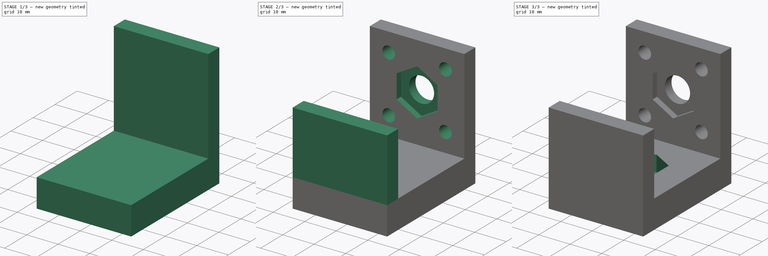
[diagram: build sequence overview — one tinted view per stage of 3, left to right]
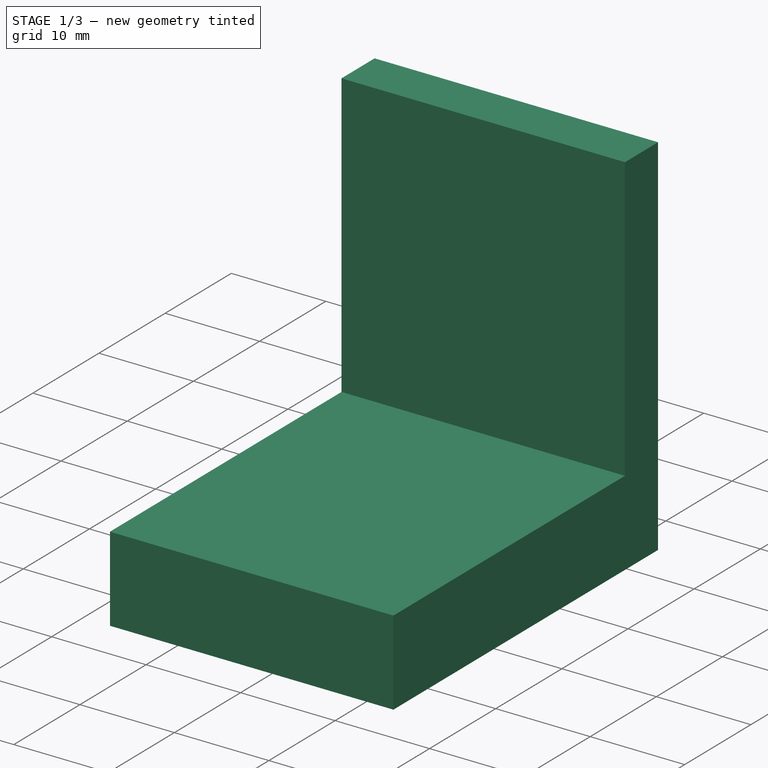
[diagram: stage 1 of 3 — iso view after this stage's code; geometry added in this stage tinted green]
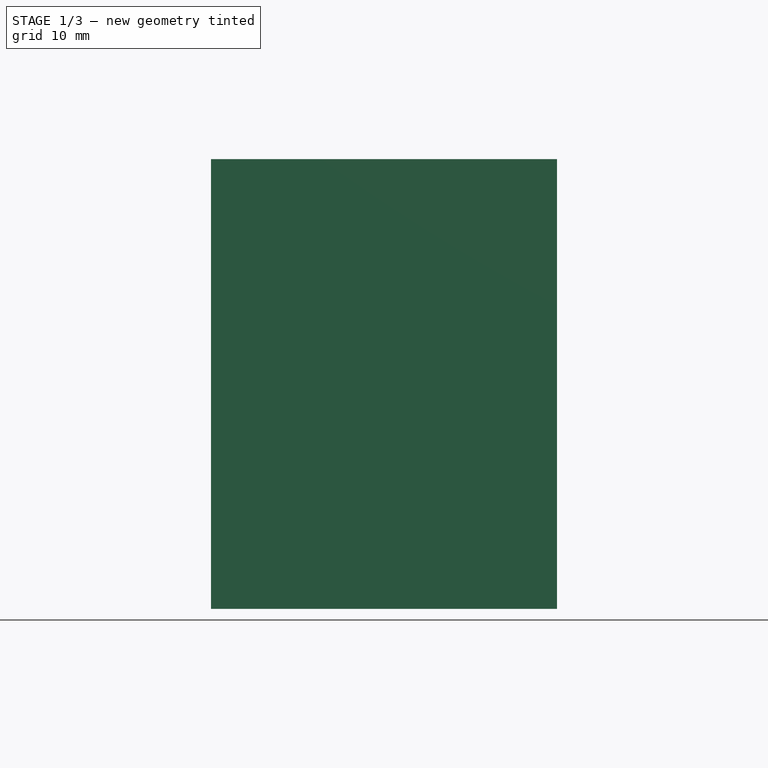
[diagram: stage 1 of 3 — front view after this stage's code; geometry added in this stage tinted green]
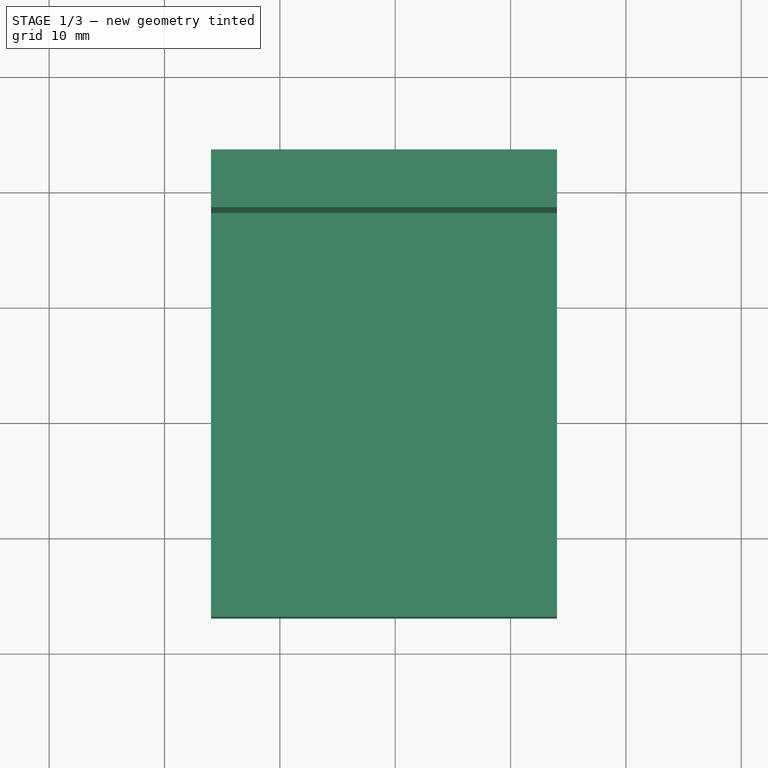
[diagram: stage 1 of 3 — top view after this stage's code; geometry added in this stage tinted green]
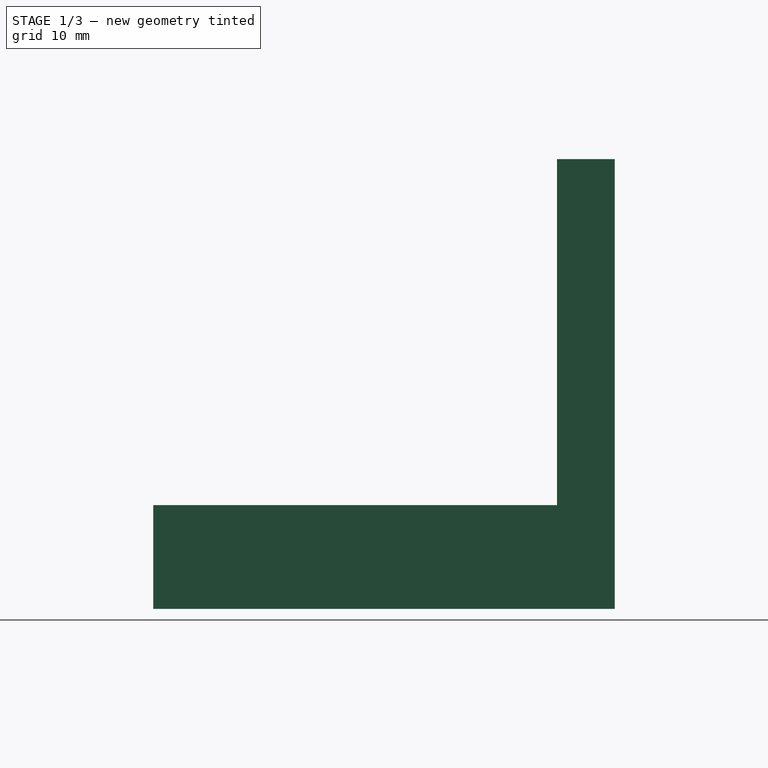
[diagram: stage 1 of 3 — right view after this stage's code; geometry added in this stage tinted green]
FCSTD DOCUMENT  (FreeCAD 0.19R24291 (Git))
Label: Захват крышки
License: All rights reserved
LicenseURL: http://en.wikipedia.org/wiki/All_rights_reserved
objects: Sketcher::SketchObject×9, PartDesign::Pocket×4, PartDesign::Pad×3, PartDesign::Body×1
note: 24 computed .brp shape members not serialized (recipe doc carries the construction recipe); baked Part::Feature solids carry a one-line shape summary decoded from their .brp

FEATURE [Sketcher::SketchObject] Sketch
  FullyConstrained = false
  MapMode = 5
  Support = -> [XY_Plane]
  sketch-geometry (4):
    g0: LineSegment StartX=-25.9712 StartY=33.0692 StartZ=0 EndX=4.02877 EndY=33.0692 EndZ=0
    g1: LineSegment StartX=4.02877 StartY=33.0692 StartZ=0 EndX=4.02877 EndY=-6.93082 EndZ=0
    g2: LineSegment StartX=4.02877 StartY=-6.93082 StartZ=0 EndX=-25.9712 EndY=-6.93082 EndZ=0
    g3: LineSegment StartX=-25.9712 StartY=-6.93082 StartZ=0 EndX=-25.9712 EndY=33.0692 EndZ=0
  constraints (10):
    c: Coincident(g0,g1)
    c: Coincident(g1,g2)
    c: Coincident(g2,g3)
    c: Coincident(g3,g0)
    c: Horizontal(g0)
    c: Horizontal(g2)
    c: Vertical(g1)
    c: Vertical(g3)
    c: Distance(g1) = 40
    c: Distance(g0) = 30
FEATURE [PartDesign::Pad] Pad
  Direction = (1,1,1)
  Length = 9
  Length2 = 100
  Profile = -> Sketch
  Type = 0
FEATURE [Sketcher::SketchObject] Sketch001
  FullyConstrained = true
  MapMode = 5
  Placement = pos=(0,0,9) rot=(0,0,1;0rad)
  Support = -> [Pad]
FEATURE [Sketcher::SketchObject] Sketch002
  ExternalGeometry = -> [Pad]
  FullyConstrained = true
  MapMode = 5
  Placement = pos=(0,0,9) rot=(0,0,1;0rad)
  Support = -> [Pad]
  sketch-geometry (4):
    g0: LineSegment StartX=4.02877 StartY=33.0692 StartZ=0 EndX=-25.9712 EndY=33.0692 EndZ=0
    g1: LineSegment StartX=-25.9712 StartY=33.0692 StartZ=0 EndX=-25.9712 EndY=28.0692 EndZ=0
    g2: LineSegment StartX=-25.9712 StartY=28.0692 StartZ=0 EndX=4.02877 EndY=28.0692 EndZ=0
    g3: LineSegment StartX=4.02877 StartY=28.0692 StartZ=0 EndX=4.02877 EndY=33.0692 EndZ=0
  constraints (10):
    c: Coincident(g0,g1)
    c: Coincident(g1,g2)
    c: Coincident(g2,g3)
    c: Coincident(g3,g0)
    c: Horizontal(g2)
    c: Vertical(g1)
    c: Vertical(g3)
    c: Coincident(g0,g-3)
    c: Coincident(g0,g-3)
    c: Distance(g3) = 5
FEATURE [PartDesign::Pad] Pad001
  BaseFeature = -> Pad
  Direction = (1,1,1)
  Length = 30
  Length2 = 100
  Profile = -> Sketch002
  Type = 0
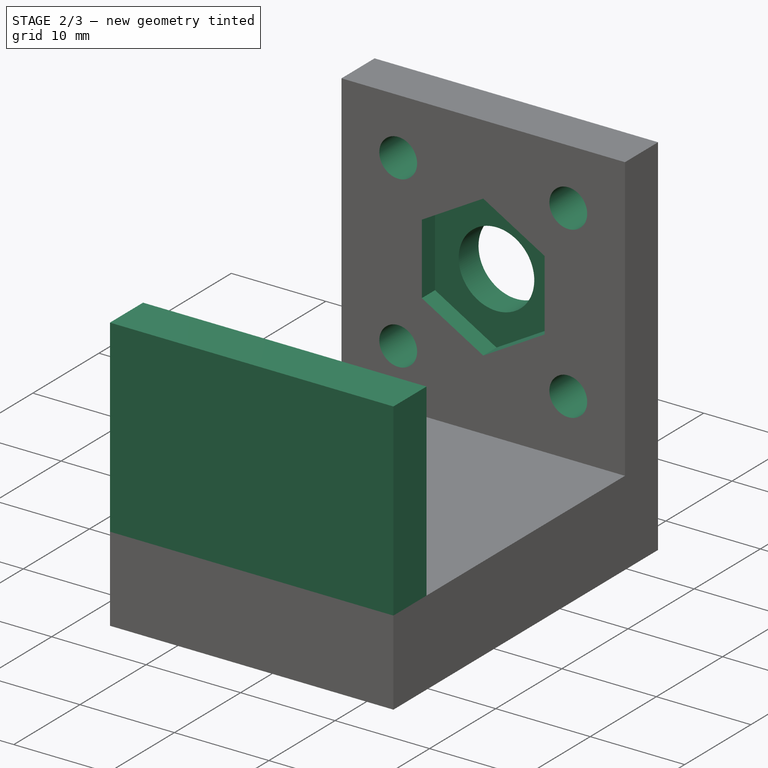
[diagram: stage 2 of 3 — iso view after this stage's code; geometry added in this stage tinted green]
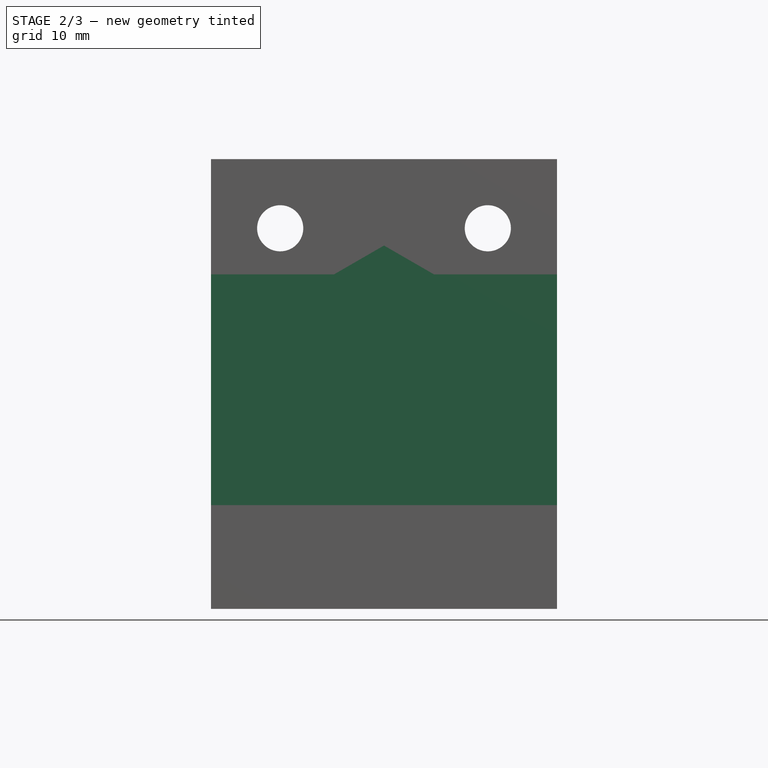
[diagram: stage 2 of 3 — front view after this stage's code; geometry added in this stage tinted green]
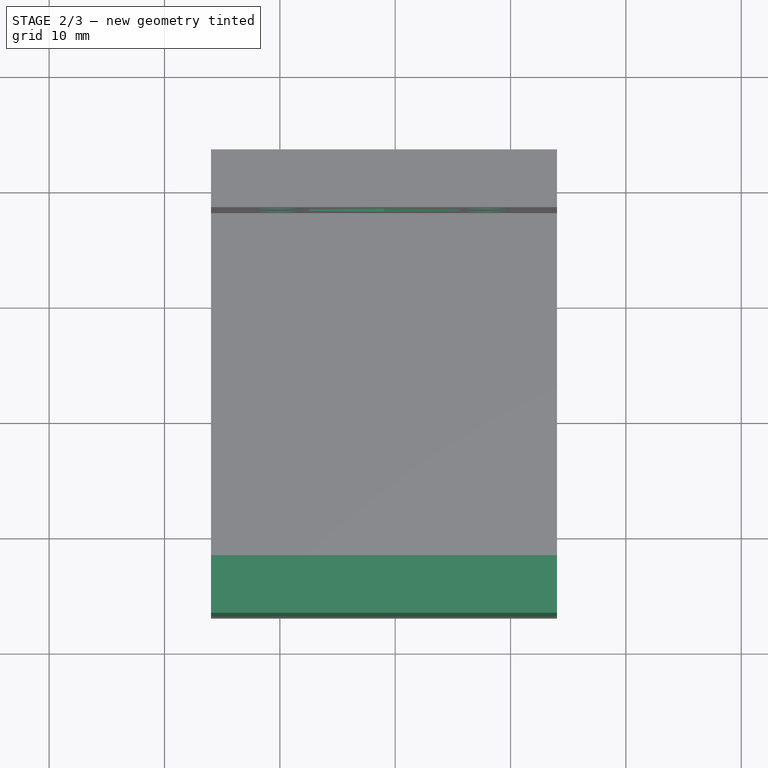
[diagram: stage 2 of 3 — top view after this stage's code; geometry added in this stage tinted green]
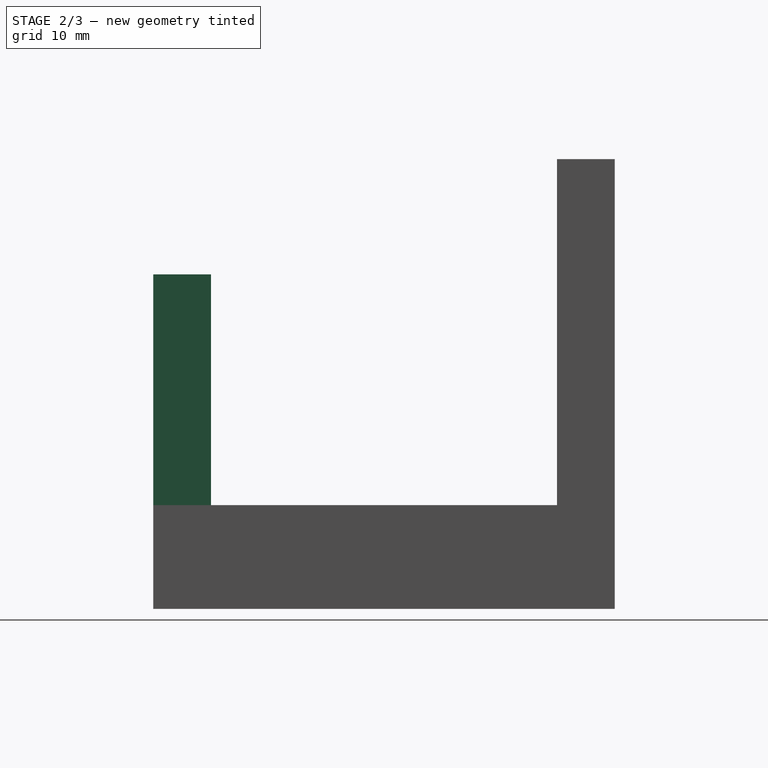
[diagram: stage 2 of 3 — right view after this stage's code; geometry added in this stage tinted green]
FEATURE [Sketcher::SketchObject] Sketch003
  ExternalGeometry = -> [Pad001]
  FullyConstrained = true
  MapMode = 5
  Placement = pos=(0,28.0692,0) rot=(1,0,0;1.5708rad)
  Support = -> [Pad001]
  sketch-geometry (13):
    g0: Circle CenterX=-1.97123 CenterY=33 CenterZ=0 NormalX=0 NormalY=0 NormalZ=1 AngleXU=0 Radius=2
    g1: Circle CenterX=-19.9712 CenterY=33 CenterZ=0 NormalX=0 NormalY=0 NormalZ=1 AngleXU=0 Radius=2
    g2: Circle CenterX=-19.9712 CenterY=15 CenterZ=0 NormalX=0 NormalY=0 NormalZ=1 AngleXU=0 Radius=2
    g3: Circle CenterX=-1.97123 CenterY=15 CenterZ=0 NormalX=0 NormalY=0 NormalZ=1 AngleXU=0 Radius=2
    g4: LineSegment StartX=-1.97123 StartY=15 StartZ=0 EndX=-1.97123 EndY=9 EndZ=0
    g5: LineSegment StartX=-1.97123 StartY=33 StartZ=0 EndX=-1.97123 EndY=39 EndZ=0
    g6: LineSegment StartX=4.02877 StartY=15 StartZ=0 EndX=-1.97123 EndY=15 EndZ=0
    g7: LineSegment StartX=-19.9712 StartY=15 StartZ=0 EndX=-25.9712 EndY=15 EndZ=0
    g8: Circle CenterX=-10.9712 CenterY=24 CenterZ=0 NormalX=0 NormalY=0 NormalZ=1 AngleXU=0 Radius=4
    g9: LineSegment StartX=-10.9712 StartY=24 StartZ=0 EndX=4.02877 EndY=24 EndZ=0
    g10: LineSegment StartX=-10.9712 StartY=24 StartZ=0 EndX=-25.9712 EndY=24 EndZ=0
    g11: LineSegment StartX=-10.9712 StartY=24 StartZ=0 EndX=-10.9712 EndY=39 EndZ=0
    g12: LineSegment StartX=-10.9712 StartY=24 StartZ=0 EndX=-10.9712 EndY=9 EndZ=0
  constraints (39):
    c: Coincident(g4,g3)
    c: PointOnObject(g4,g-6)
    c: Vertical(g4)
    c: Coincident(g5,g0)
    c: PointOnObject(g5,g-3)
    c: Vertical(g5)
    c: PointOnObject(g6,g-4)
    c: Coincident(g6,g3)
    c: Coincident(g7,g2)
    c: PointOnObject(g7,g-5)
    c: Horizontal(g7)
    c: Horizontal(g6)
    c: Horizontal(g1,g0)
    c: Horizontal(g3,g2)
    c: Vertical(g2,g1)
    c: Vertical(g3,g0)
    c: Equal(g3,g0)
    c: Equal(g0,g1)
    c: Equal(g1,g2)
    c: Equal(g4,g5)
    c: Equal(g6,g7)
    c: Distance(g3,g0) = 18
    c: Distance(g2,g3) = 18
    c: Diameter(g0) = 4
    c: Coincident(g9,g8)
    c: PointOnObject(g9,g-4)
    c: Horizontal(g9)
    c: Coincident(g10,g8)
    c: PointOnObject(g10,g-5)
    c: Horizontal(g10)
    c: Coincident(g11,g8)
    c: PointOnObject(g11,g-3)
    c: Vertical(g11)
    c: Coincident(g12,g8)
    c: PointOnObject(g12,g-6)
    c: Vertical(g12)
    c: Equal(g12,g11)
    c: Equal(g9,g10)
    c: Diameter(g8) = 8
FEATURE [PartDesign::Pocket] Pocket
  BaseFeature = -> Pad001
  Length = 5
  Length2 = 100
  Profile = -> Sketch003
  Type = 1
FEATURE [Sketcher::SketchObject] Sketch005
  ExternalGeometry = -> [Pad001]
  FullyConstrained = true
  MapMode = 5
  Placement = pos=(0,28.0692,0) rot=(1,0,0;1.5708rad)
  Support = -> [Pocket]
  expr: Constraints[38] = Sketch003.Constraints[38]
  expr: Constraints[23] = Sketch003.Constraints[23]
  expr: Constraints[22] = Sketch003.Constraints[22]
  sketch-geometry (20):
    g0: Circle CenterX=-1.97123 CenterY=34.5 CenterZ=0 NormalX=0 NormalY=0 NormalZ=1 AngleXU=0 Radius=2
    g1: Circle CenterX=-19.9712 CenterY=34.5 CenterZ=0 NormalX=0 NormalY=0 NormalZ=1 AngleXU=0 Radius=2
    g2: Circle CenterX=-19.9712 CenterY=13.5 CenterZ=0 NormalX=0 NormalY=0 NormalZ=1 AngleXU=0 Radius=2
    g3: Circle CenterX=-1.97123 CenterY=13.5 CenterZ=0 NormalX=0 NormalY=0 NormalZ=1 AngleXU=0 Radius=2
    g4: LineSegment StartX=-1.97123 StartY=13.5 StartZ=0 EndX=-1.97123 EndY=9 EndZ=0
    g5: LineSegment StartX=-1.97123 StartY=34.5 StartZ=0 EndX=-1.97123 EndY=39 EndZ=0
    g6: LineSegment StartX=4.02877 StartY=13.5 StartZ=0 EndX=-1.97123 EndY=13.5 EndZ=0
    g7: LineSegment StartX=-19.9712 StartY=13.5 StartZ=0 EndX=-25.9712 EndY=13.5 EndZ=0
    g8: Circle CenterX=-10.9712 CenterY=24 CenterZ=0 NormalX=0 NormalY=0 NormalZ=1 AngleXU=0 Radius=4
    g9: LineSegment StartX=-10.9712 StartY=24 StartZ=0 EndX=4.02877 EndY=24 EndZ=0
    g10: LineSegment StartX=-10.9712 StartY=24 StartZ=0 EndX=-25.9712 EndY=24 EndZ=0
    g11: LineSegment StartX=-10.9712 StartY=24 StartZ=0 EndX=-10.9712 EndY=39 EndZ=0
    g12: LineSegment StartX=-10.9712 StartY=24 StartZ=0 EndX=-10.9712 EndY=9 EndZ=0
    g13: LineSegment StartX=-4.47123 StartY=27.7528 StartZ=0 EndX=-10.9712 EndY=31.5056 EndZ=0
    g14: LineSegment StartX=-10.9712 StartY=31.5056 StartZ=0 EndX=-17.4712 EndY=27.7528 EndZ=0
    g15: LineSegment StartX=-17.4712 StartY=27.7528 StartZ=0 EndX=-17.4712 EndY=20.2472 EndZ=0
    g16: LineSegment StartX=-17.4712 StartY=20.2472 StartZ=0 EndX=-10.9712 EndY=16.4944 EndZ=0
    g17: LineSegment StartX=-10.9712 StartY=16.4944 StartZ=0 EndX=-4.47123 EndY=20.2472 EndZ=0
    g18: LineSegment StartX=-4.47123 StartY=20.2472 StartZ=0 EndX=-4.47123 EndY=27.7528 EndZ=0
    g19: Circle CenterX=-10.9712 CenterY=24 CenterZ=0 NormalX=0 NormalY=0 NormalZ=1 AngleXU=0 Radius=7.50555
  constraints (55):
    c: Coincident(g4,g3)
    c: PointOnObject(g4,g-6)
    c: Vertical(g4)
    c: Coincident(g5,g0)
    c: PointOnObject(g5,g-3)
    c: Vertical(g5)
    c: PointOnObject(g6,g-4)
    c: Coincident(g6,g3)
    c: Coincident(g7,g2)
    c: PointOnObject(g7,g-5)
    c: Horizontal(g7)
    c: Horizontal(g6)
    c: Horizontal(g1,g0)
    c: Horizontal(g3,g2)
    c: Vertical(g2,g1)
    c: Vertical(g3,g0)
    c: Equal(g3,g0)
    c: Equal(g0,g1)
    c: Equal(g1,g2)
    c: Equal(g4,g5)
    c: Equal(g6,g7)
    c: Distance(g3,g0) = 21
    c: Distance(g2,g3) = 18
    c: Diameter(g0) = 4
    c: Coincident(g9,g8)
    c: PointOnObject(g9,g-4)
    c: Horizontal(g9)
    c: Coincident(g10,g8)
    c: PointOnObject(g10,g-5)
    c: Horizontal(g10)
    c: Coincident(g11,g8)
    c: PointOnObject(g11,g-3)
    c: Vertical(g11)
    c: Coincident(g12,g8)
    c: PointOnObject(g12,g-6)
    c: Vertical(g12)
    c: Equal(g12,g11)
    c: Equal(g9,g10)
    c: Diameter(g8) = 8
    c: Coincident(g13,g14)
    c: Coincident(g14,g15)
    c: Coincident(g15,g16)
    c: Coincident(g16,g17)
    c: Coincident(g17,g18)
    c: Coincident(g18,g13)
    c: Equal(g13, g14-g18) x5
    c: PointOnObject(g13,g19)
    c: PointOnObject(g14,g19)
    c: PointOnObject(g15,g19)
    c: PointOnObject(g16,g19)
    c: PointOnObject(g17,g19)
    c: PointOnObject(g18,g19)
    c: Coincident(g19,g8)
    c: Distance(g16,g13) = 13
    c: Vertical(g18)
FEATURE [PartDesign::Pocket] Pocket001
  BaseFeature = -> Pocket
  Length = 2
  Length2 = 100
  Profile = -> Sketch005
  Type = 0
FEATURE [Sketcher::SketchObject] Sketch006
  FullyConstrained = true
  MapMode = 5
  Placement = pos=(0,0,9) rot=(0,0,1;0rad)
  Support = -> [Pocket001]
FEATURE [Sketcher::SketchObject] Sketch007
  ExternalGeometry = -> [Pocket001]
  FullyConstrained = true
  MapMode = 5
  Placement = pos=(0,0,9) rot=(0,0,1;0rad)
  Support = -> [Pocket001]
  sketch-geometry (4):
    g0: LineSegment StartX=-25.9712 StartY=-6.93082 StartZ=0 EndX=4.02877 EndY=-6.93082 EndZ=0
    g1: LineSegment StartX=4.02877 StartY=-6.93082 StartZ=0 EndX=4.02877 EndY=-1.93082 EndZ=0
    g2: LineSegment StartX=4.02877 StartY=-1.93082 StartZ=0 EndX=-25.9712 EndY=-1.93082 EndZ=0
    g3: LineSegment StartX=-25.9712 StartY=-1.93082 StartZ=0 EndX=-25.9712 EndY=-6.93082 EndZ=0
  constraints (10):
    c: Coincident(g0,g1)
    c: Coincident(g1,g2)
    c: Coincident(g2,g3)
    c: Coincident(g3,g0)
    c: Horizontal(g2)
    c: Vertical(g1)
    c: Vertical(g3)
    c: Coincident(g0,g-3)
    c: Coincident(g0,g-3)
    c: Distance(g1) = 5
FEATURE [PartDesign::Pad] Pad002
  BaseFeature = -> Pocket001
  Direction = (1,1,1)
  Length = 20
  Length2 = 100
  Profile = -> Sketch007
  Type = 0
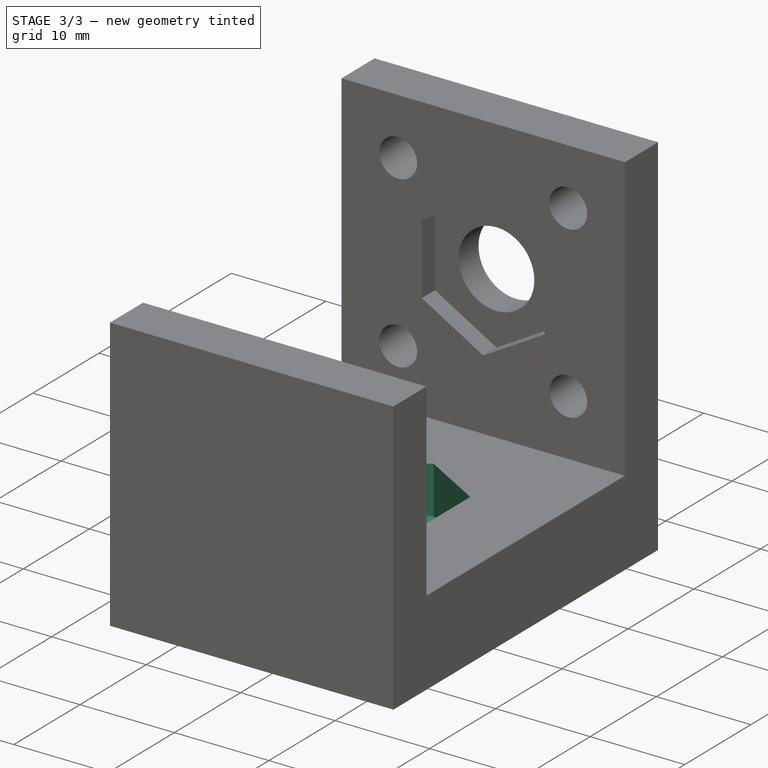
[diagram: stage 3 of 3 — iso view after this stage's code; geometry added in this stage tinted green]
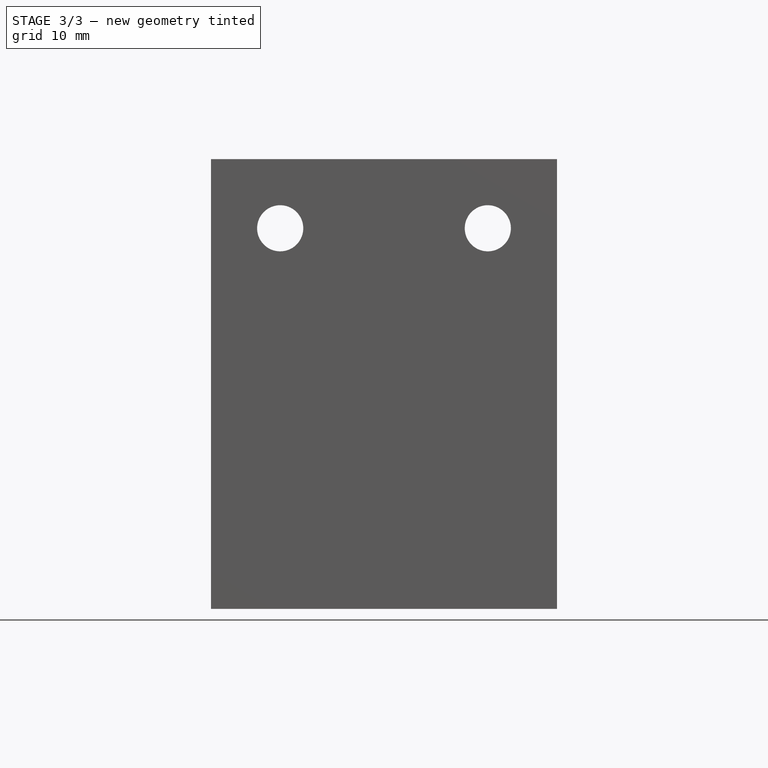
[diagram: stage 3 of 3 — front view after this stage's code; geometry added in this stage tinted green]
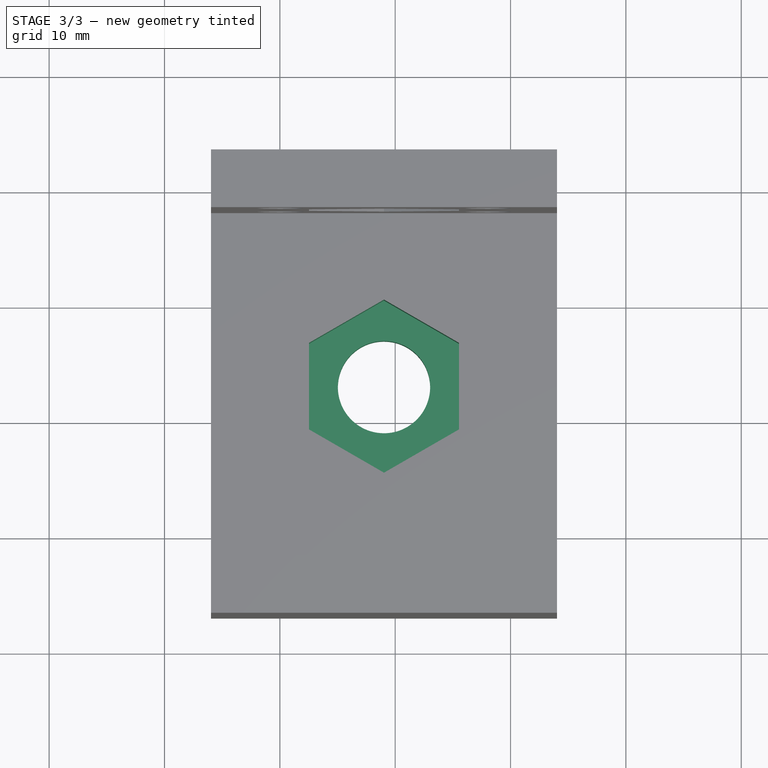
[diagram: stage 3 of 3 — top view after this stage's code; geometry added in this stage tinted green]
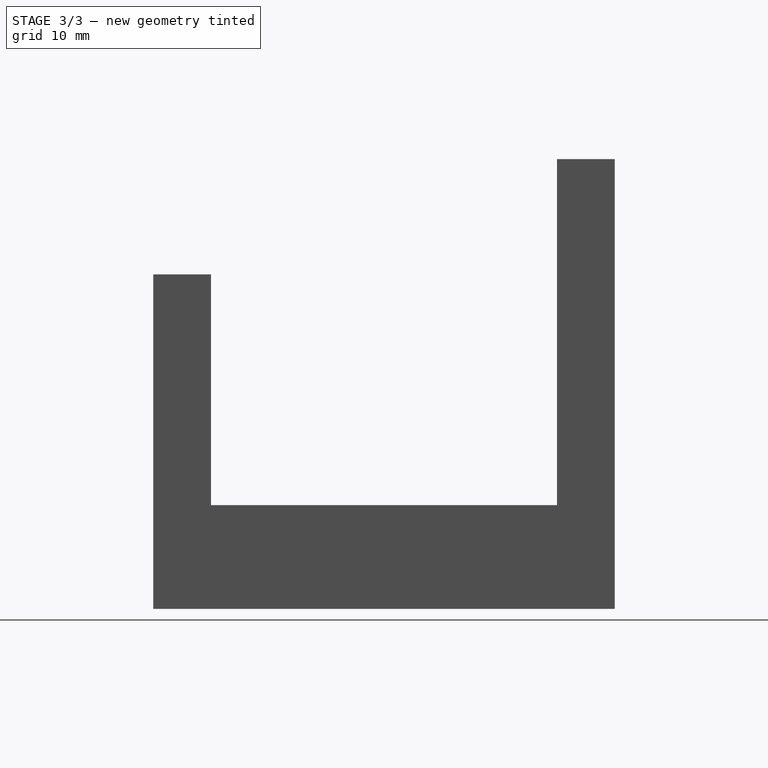
[diagram: stage 3 of 3 — right view after this stage's code; geometry added in this stage tinted green]
FEATURE [Sketcher::SketchObject] Sketch008
  ExternalGeometry = -> [Pad002]
  FullyConstrained = true
  MapMode = 5
  Placement = pos=(0,0,9) rot=(0,0,1;0rad)
  Support = -> [Pad002]
  sketch-geometry (3):
    g0: LineSegment StartX=-25.9712 StartY=-6.93082 StartZ=0 EndX=4.02877 EndY=33.0692 EndZ=0
    g1: LineSegment StartX=4.02877 StartY=-6.93082 StartZ=0 EndX=-25.9712 EndY=33.0692 EndZ=0
    g2: Circle CenterX=-10.9712 CenterY=13.0692 CenterZ=0 NormalX=0 NormalY=0 NormalZ=1 AngleXU=0 Radius=4
  constraints (7):
    c: Coincident(g0,g-3)
    c: Coincident(g0,g-4)
    c: Coincident(g1,g-3)
    c: Coincident(g1,g-4)
    c: PointOnObject(g2,g1)
    c: PointOnObject(g2,g0)
    c: Diameter(g2) = 8
FEATURE [PartDesign::Pocket] Pocket002
  BaseFeature = -> Pad002
  Length = 5
  Length2 = 100
  Profile = -> Sketch008
  Type = 1
FEATURE [Sketcher::SketchObject] Sketch009
  ExternalGeometry = -> [Pocket002]
  FullyConstrained = true
  MapMode = 5
  Placement = pos=(0,0,9) rot=(0,0,1;0rad)
  Support = -> [Pocket002]
  sketch-geometry (7):
    g0: LineSegment StartX=-4.47123 StartY=16.822 StartZ=0 EndX=-10.9712 EndY=20.5747 EndZ=0
    g1: LineSegment StartX=-10.9712 StartY=20.5747 StartZ=0 EndX=-17.4712 EndY=16.822 EndZ=0
    g2: LineSegment StartX=-17.4712 StartY=16.822 StartZ=0 EndX=-17.4712 EndY=9.31641 EndZ=0
    g3: LineSegment StartX=-17.4712 StartY=9.31641 StartZ=0 EndX=-10.9712 EndY=5.56363 EndZ=0
    g4: LineSegment StartX=-10.9712 StartY=5.56363 StartZ=0 EndX=-4.47123 EndY=9.31641 EndZ=0
    g5: LineSegment StartX=-4.47123 StartY=9.31641 StartZ=0 EndX=-4.47123 EndY=16.822 EndZ=0
    g6: Circle CenterX=-10.9712 CenterY=13.0692 CenterZ=0 NormalX=0 NormalY=0 NormalZ=1 AngleXU=0 Radius=7.50555
  constraints (16):
    c: Coincident(g0,g1)
    c: Coincident(g1,g2)
    c: Coincident(g2,g3)
    c: Coincident(g3,g4)
    c: Coincident(g4,g5)
    c: Coincident(g5,g0)
    c: Equal(g0, g1-g5) x5
    c: PointOnObject(g0,g6)
    c: PointOnObject(g1,g6)
    c: PointOnObject(g2,g6)
    c: PointOnObject(g3,g6)
    c: PointOnObject(g4,g6)
    c: PointOnObject(g5,g6)
    c: Vertical(g5)
    c: Distance(g4,g2) = 13
    c: Coincident(g6,g-3)
FEATURE [PartDesign::Pocket] Pocket003
  BaseFeature = -> Pocket002
  Length = 5
  Length2 = 100
  Profile = -> Sketch009
  Type = 0
FEATURE [PartDesign::Body] Body
  Group = -> [Sketch,Pad,Sketch001,Sketch002,Pad001,Sketch003,Pocket,Sketch005,Pocket001,Sketch006,Sketch007,Pad002,Sketch008,Pocket002,Sketch009,Pocket003]
  Origin = -> Origin
  Tip = -> Pocket003
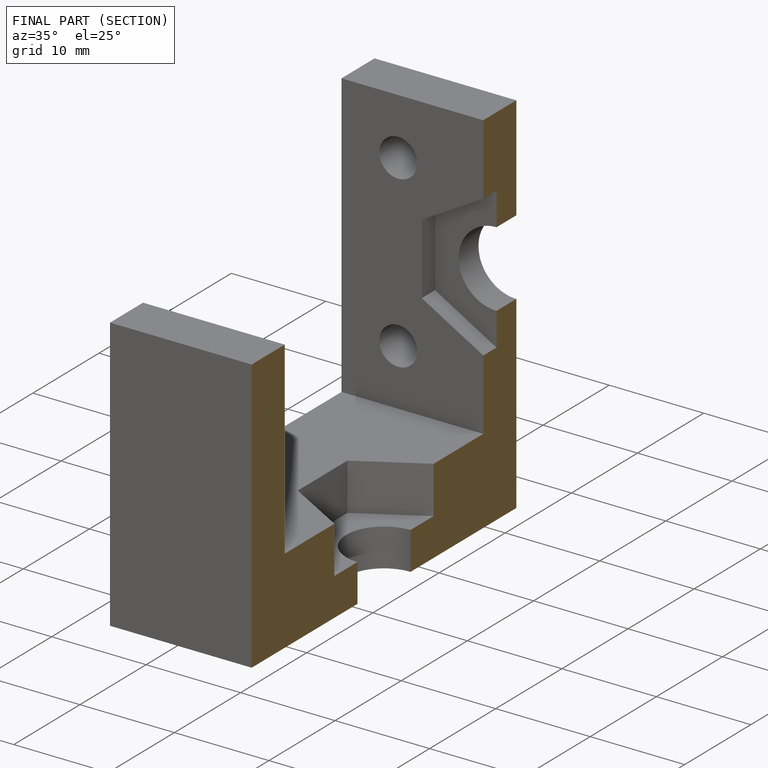
[diagram: finished part — half-section view (interior)]
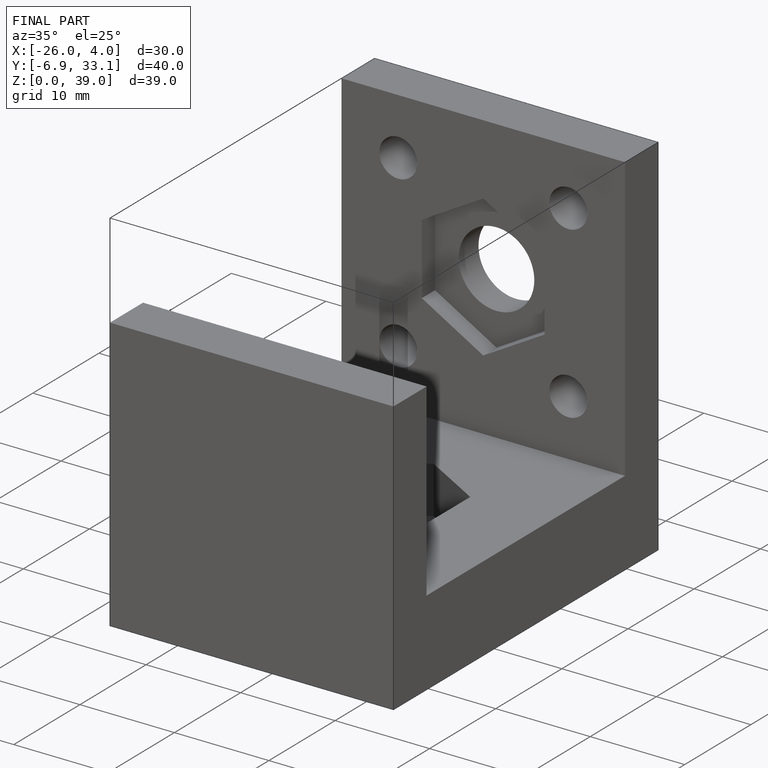
[diagram: finished part — iso view with bounding-box wireframe]
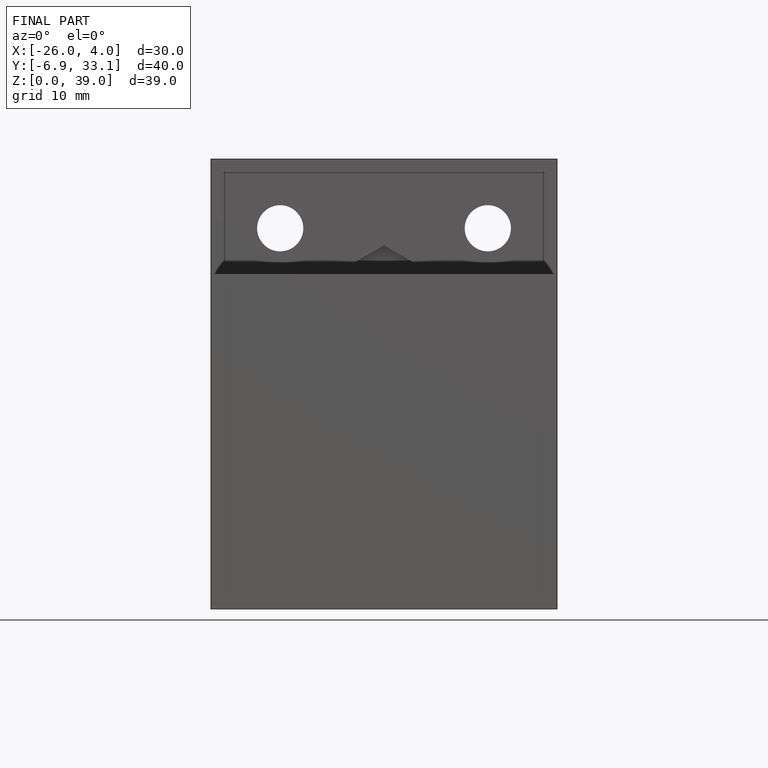
[diagram: finished part — front view with bounding-box wireframe]
